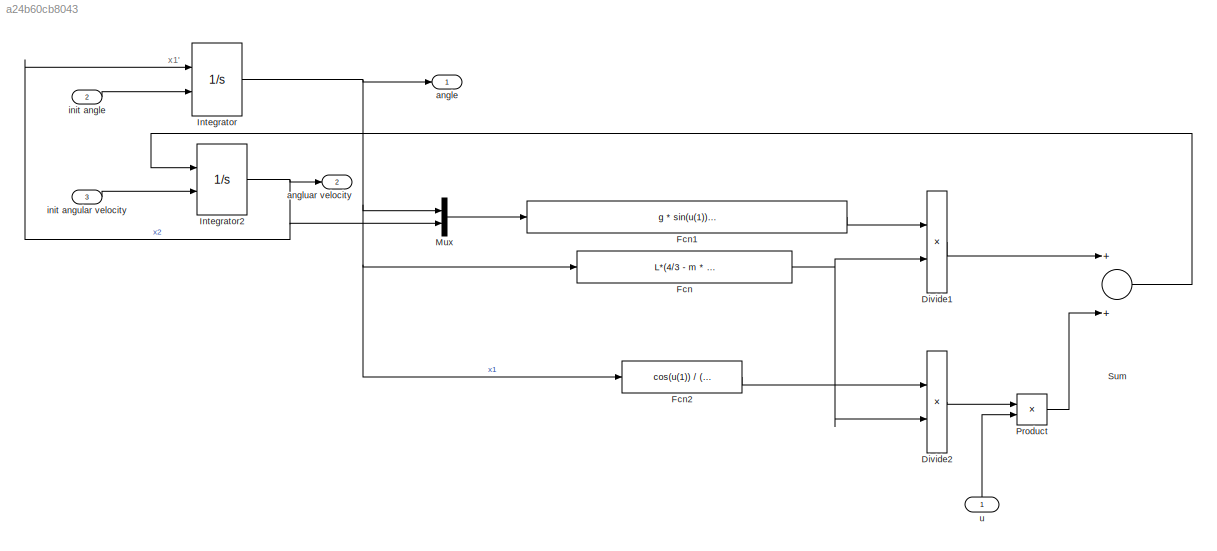
MODEL slx_a24b60cb8043
KIND model
BLOCK [Product] Divide1
  InputSameDT = off
  Inputs = */
  OutDataTypeStr = Inherit: Inherit via internal rule
  Ports = [2, 1]
  RndMeth = Floor
  SaturateOnIntegerOverflow = off
BLOCK [Product] Divide2
  InputSameDT = off
  Inputs = */
  OutDataTypeStr = Inherit: Inherit via internal rule
  Ports = [2, 1]
  RndMeth = Floor
  SaturateOnIntegerOverflow = off
BLOCK [Fcn] Fcn
  Expr = L*(4/3 - m * cos(u(1))*cos(u(1)) / (m_c + m)   )
BLOCK [Fcn] Fcn1
  Expr = g * sin(u(1)) - ( m * L * u(2) * u(2) * cos(u(1)) * sin(u(1)) ) / (m_c + m)
BLOCK [Fcn] Fcn2
  Expr = cos(u(1)) / (m_c + m)
BLOCK [Integrator] Integrator
  InitialConditionSource = external
  LimitOutput = on
  LowerSaturationLimit = -pi/2
  Ports = [2, 1]
  UpperSaturationLimit = pi/2
BLOCK [Integrator] Integrator2
  InitialConditionSource = external
  Ports = [2, 1]
BLOCK [Mux] Mux
  DisplayOption = bar
  Inputs = 2
  Ports = [2, 1]
BLOCK [Product] Product
  InputSameDT = off
  OutDataTypeStr = Inherit: Inherit via internal rule
  Ports = [2, 1]
  SaturateOnIntegerOverflow = off
BLOCK [Sum] Sum
  InputSameDT = off
  OutDataTypeStr = Inherit: Inherit via internal rule
  Ports = [2, 1]
  SaturateOnIntegerOverflow = off
BLOCK [Outport] angle
  IconDisplay = Port number
BLOCK [Outport] angluar velocity
  IconDisplay = Port number
  Port = 2
BLOCK [Inport] init angle
  IconDisplay = Port number
  Port = 2
BLOCK [Inport] init angular velocity
  IconDisplay = Port number
  Port = 3
BLOCK [Inport] u
  IconDisplay = Port number
ANNOTATION (root): x1'
LINE Divide1:1 -> Sum:1
LINE Divide2:1 -> Product:1
LINE Fcn1:1 -> Divide1:1
LINE Fcn2:1 -> Divide2:1
NET Fcn:1 -> Divide1:2, Divide2:2
NET Integrator2:1 -> Integrator:1, Mux:2, angluar velocity:1
NET Integrator:1 -> Fcn2:1, Fcn:1, Mux:1, angle:1
LINE Mux:1 -> Fcn1:1
LINE Product:1 -> Sum:2
LINE Sum:1 -> Integrator2:1
LINE init angle:1 -> Integrator:2
LINE init angular velocity:1 -> Integrator2:2
LINE u:1 -> Product:2
note: NET lines group one-source signal fan-out (src -> all destinations, sorted); 1:1 wires keep LINE
